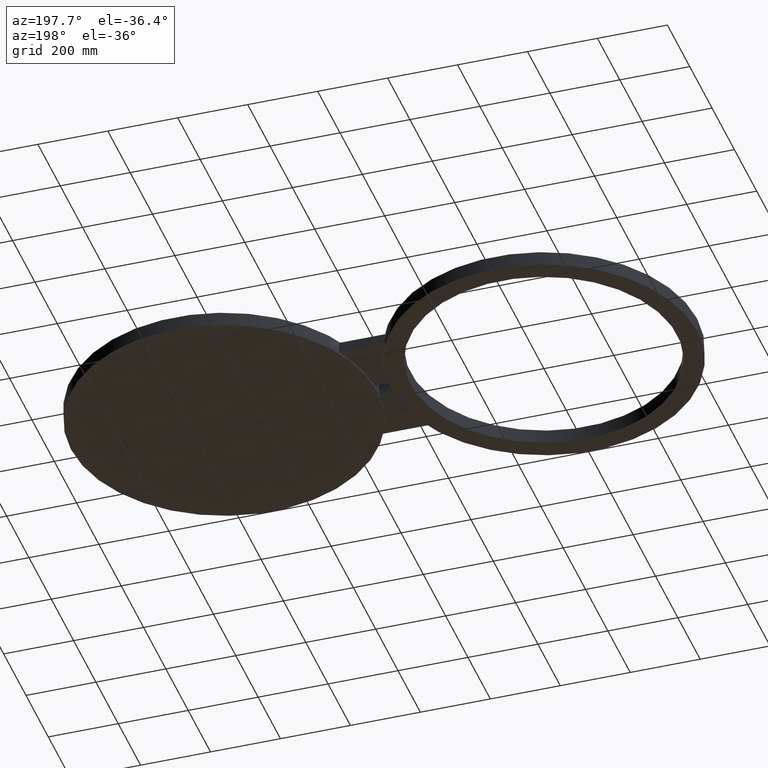
[diagram: clean part render]
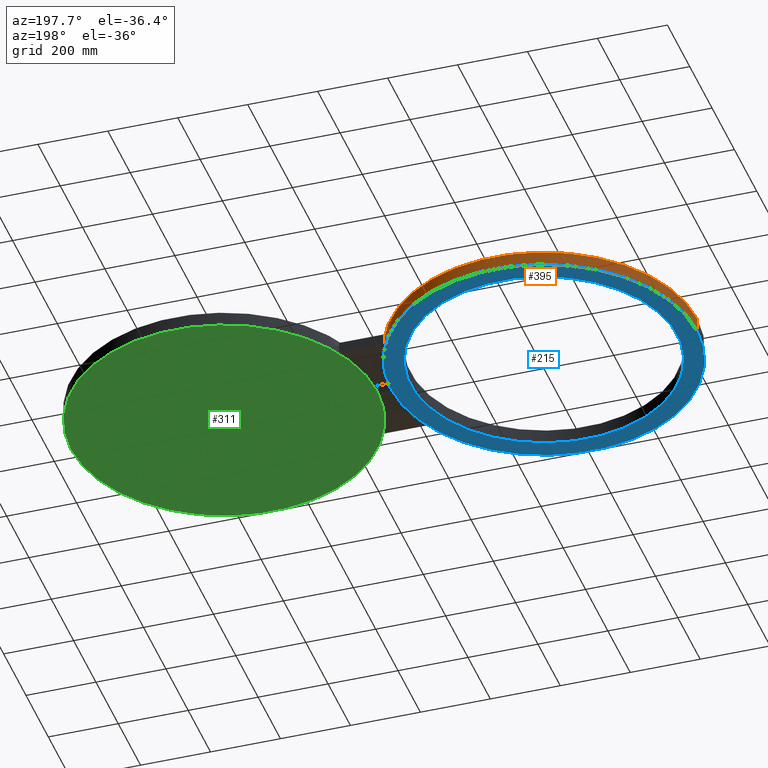
[diagram: same view with three faces highlighted in distinct colors, each labeled with its STEP entity id]
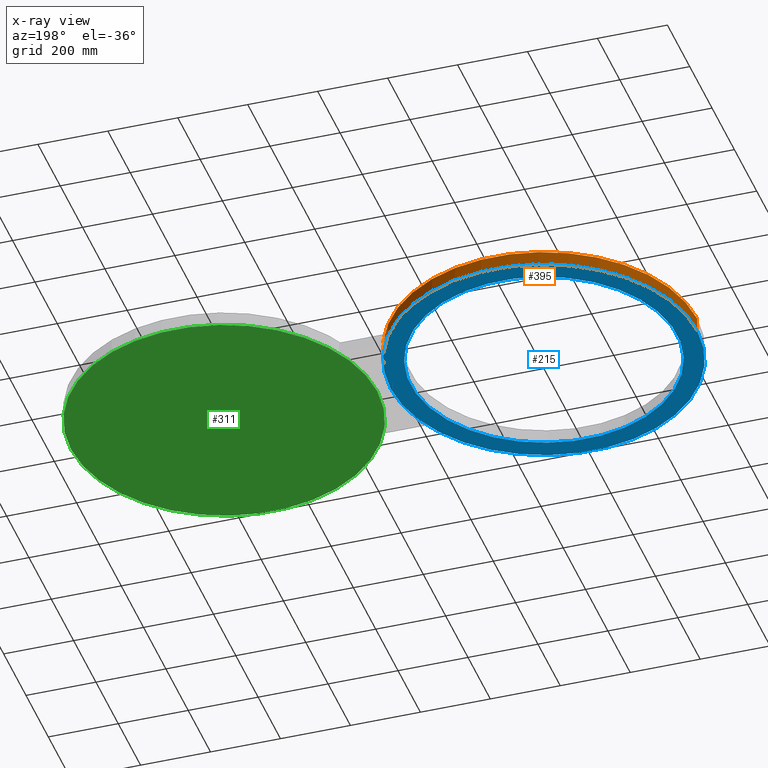
[diagram: x-ray of the same camera — body ghosted, the three highlighted faces saturated]
A machine part, auxiliary view with three faces highlighted in distinct colors.
The next image is the same camera in x-ray (body ghosted, the three faces saturated) — at least one of them is partly hidden behind the body in this view.
Their STEP definitions:

[orange] entity #395 — the highlighted cylindrical surface (partial cylindrical patch) has radius 438.15 mm, axis along (0, 0, 1).
#112=AXIS2_PLACEMENT_3D('Cylinder Axis2P3D',#109,#110,#111) ;
#190=AXIS2_PLACEMENT_3D('Circle Axis2P3D',#188,#189,$) ;
#272=AXIS2_PLACEMENT_3D('Circle Axis2P3D',#270,#271,$) ;
#344=AXIS2_PLACEMENT_3D('Circle Axis2P3D',#342,#343,$) ;
#380=AXIS2_PLACEMENT_3D('Circle Axis2P3D',#378,#379,$) ;
#109=CARTESIAN_POINT('Axis2P3D Location',(0.,0.,0.)) ;
#114=CARTESIAN_POINT('Line Origine',(-17.2500000001,2.11251572854E-015,0.)) ;
#118=CARTESIAN_POINT('Vertex',(-17.2500000001,2.11251572854E-015,-0.812500000003)) ;
#120=CARTESIAN_POINT('Vertex',(-17.2500000001,2.11251572854E-015,0.812500000003)) ;
#127=CARTESIAN_POINT('Vertex',(17.2500000001,0.,-0.812500000003)) ;
#130=CARTESIAN_POINT('Line Origine',(17.2500000001,-4.22503145708E-015,0.)) ;
#134=CARTESIAN_POINT('Vertex',(17.2500000001,0.,0.812500000003)) ;
#188=CARTESIAN_POINT('Axis2P3D Location',(0.,0.,-0.812500000003)) ;
#234=CARTESIAN_POINT('Vertex',(15.4110350075,7.75000000003,-0.609375000002)) ;
#237=CARTESIAN_POINT('Line Origine',(15.4110350075,7.75000000003,-6.99353086378E-017)) ;
#241=CARTESIAN_POINT('Vertex',(15.4110350075,7.75000000003,0.609375000002)) ;
#265=CARTESIAN_POINT('Vertex',(17.2336879397,0.750000000003,-0.609375000002)) ;
#270=CARTESIAN_POINT('Axis2P3D Location',(-6.04241066631E-014,-1.73439565422E-014,-0.609375000002)) ;
#342=CARTESIAN_POINT('Axis2P3D Location',(-6.04241066631E-014,-1.73439565422E-014,0.609375000002)) ;
#346=CARTESIAN_POINT('Vertex',(17.2336879397,0.750000000003,0.609375000002)) ;
#366=CARTESIAN_POINT('Line Origine',(17.2336879397,0.750000000003,-6.99353086378E-017)) ;
#378=CARTESIAN_POINT('Axis2P3D Location',(0.,0.,0.812500000003)) ;
#110=DIRECTION('Axis2P3D Direction',(0.,0.,0.0393700787402)) ;
#111=DIRECTION('Axis2P3D XDirection',(0.0393700787402,0.,0.)) ;
#115=DIRECTION('Vector Direction',(0.,0.,0.0393700787402)) ;
#131=DIRECTION('Vector Direction',(0.,0.,0.0393700787402)) ;
#189=DIRECTION('Axis2P3D Direction',(0.,0.,0.0393700787402)) ;
#238=DIRECTION('Vector Direction',(0.,0.,0.0393700787402)) ;
#271=DIRECTION('Axis2P3D Direction',(0.,0.,0.0393700787402)) ;
#343=DIRECTION('Axis2P3D Direction',(0.,0.,0.0393700787402)) ;
#367=DIRECTION('Vector Direction',(0.,0.,0.0393700787402)) ;
#379=DIRECTION('Axis2P3D Direction',(0.,0.,0.0393700787402)) ;
#116=VECTOR('Line Direction',#115,0.0393700787402) ;
#132=VECTOR('Line Direction',#131,0.0393700787402) ;
#239=VECTOR('Line Direction',#238,0.0393700787402) ;
#368=VECTOR('Line Direction',#367,0.0393700787402) ;
#384=ORIENTED_EDGE('',*,*,#136,.F.) ;
#385=ORIENTED_EDGE('',*,*,#192,.T.) ;
#386=ORIENTED_EDGE('',*,*,#122,.T.) ;
#387=ORIENTED_EDGE('',*,*,#382,.F.) ;
#390=ORIENTED_EDGE('',*,*,#243,.F.) ;
#391=ORIENTED_EDGE('',*,*,#274,.F.) ;
#392=ORIENTED_EDGE('',*,*,#370,.T.) ;
#393=ORIENTED_EDGE('',*,*,#348,.T.) ;
#394=FACE_BOUND('',#389,.T.) ;
#395=ADVANCED_FACE('PartBody',(#388,#394),#113,.T.) ;
#191=CIRCLE('generated circle',#190,17.2500000001) ;
#273=CIRCLE('generated circle',#272,17.2500000001) ;
#345=CIRCLE('generated circle',#344,17.2500000001) ;
#381=CIRCLE('generated circle',#380,17.2500000001) ;
#113=CYLINDRICAL_SURFACE('generated cylinder',#112,17.2500000001) ;
#122=EDGE_CURVE('',#119,#121,#117,.T.) ;
#136=EDGE_CURVE('',#128,#135,#133,.T.) ;
#192=EDGE_CURVE('',#128,#119,#191,.T.) ;
#243=EDGE_CURVE('',#235,#242,#240,.T.) ;
#274=EDGE_CURVE('',#266,#235,#273,.T.) ;
#348=EDGE_CURVE('',#347,#242,#345,.T.) ;
#370=EDGE_CURVE('',#266,#347,#369,.T.) ;
#382=EDGE_CURVE('',#135,#121,#381,.T.) ;
#383=EDGE_LOOP('',(#384,#385,#386,#387)) ;
#389=EDGE_LOOP('',(#390,#391,#392,#393)) ;
#388=FACE_OUTER_BOUND('',#383,.T.) ;
#117=LINE('Line',#114,#116) ;
#133=LINE('Line',#130,#132) ;
#240=LINE('Line',#237,#239) ;
#369=LINE('Line',#366,#368) ;
#119=VERTEX_POINT('',#118) ;
#121=VERTEX_POINT('',#120) ;
#128=VERTEX_POINT('',#127) ;
#135=VERTEX_POINT('',#134) ;
#235=VERTEX_POINT('',#234) ;
#242=VERTEX_POINT('',#241) ;
#266=VERTEX_POINT('',#265) ;
#347=VERTEX_POINT('',#346) ;

[blue] entity #215 — the highlighted planar face has unit normal (0, 0, 1).
#125=AXIS2_PLACEMENT_3D('Circle Axis2P3D',#123,#124,$) ;
#186=AXIS2_PLACEMENT_3D('Plane Axis2P3D',#183,#184,#185) ;
#190=AXIS2_PLACEMENT_3D('Circle Axis2P3D',#188,#189,$) ;
#199=AXIS2_PLACEMENT_3D('Circle Axis2P3D',#197,#198,$) ;
#208=AXIS2_PLACEMENT_3D('Circle Axis2P3D',#206,#207,$) ;
#118=CARTESIAN_POINT('Vertex',(-17.2500000001,2.11251572854E-015,-0.812500000003)) ;
#123=CARTESIAN_POINT('Axis2P3D Location',(0.,0.,-0.812500000003)) ;
#127=CARTESIAN_POINT('Vertex',(17.2500000001,0.,-0.812500000003)) ;
#183=CARTESIAN_POINT('Axis2P3D Location',(0.,0.,-0.812500000003)) ;
#188=CARTESIAN_POINT('Axis2P3D Location',(0.,0.,-0.812500000003)) ;
#197=CARTESIAN_POINT('Axis2P3D Location',(2.23792987641E-015,-4.47585975282E-015,-0.812500000003)) ;
#201=CARTESIAN_POINT('Vertex',(13.1637384284,-7.19138307909,-0.812500000003)) ;
#203=CARTESIAN_POINT('Vertex',(-13.1637384284,7.19138307909,-0.812500000003)) ;
#206=CARTESIAN_POINT('Axis2P3D Location',(-5.59482469102E-016,2.23792987641E-015,-0.812500000003)) ;
#124=DIRECTION('Axis2P3D Direction',(0.,0.,0.0393700787402)) ;
#184=DIRECTION('Axis2P3D Direction',(0.,0.,0.0393700787402)) ;
#185=DIRECTION('Axis2P3D XDirection',(0.0393700787402,0.,0.)) ;
#189=DIRECTION('Axis2P3D Direction',(0.,0.,0.0393700787402)) ;
#198=DIRECTION('Axis2P3D Direction',(0.,0.,0.0393700787402)) ;
#207=DIRECTION('Axis2P3D Direction',(0.,0.,0.0393700787402)) ;
#194=ORIENTED_EDGE('',*,*,#129,.F.) ;
#195=ORIENTED_EDGE('',*,*,#192,.F.) ;
#212=ORIENTED_EDGE('',*,*,#205,.T.) ;
#213=ORIENTED_EDGE('',*,*,#210,.T.) ;
#214=FACE_BOUND('',#211,.T.) ;
#215=ADVANCED_FACE('PartBody',(#196,#214),#187,.F.) ;
#126=CIRCLE('generated circle',#125,17.2500000001) ;
#191=CIRCLE('generated circle',#190,17.2500000001) ;
#200=CIRCLE('generated circle',#199,15.0000000001) ;
#209=CIRCLE('generated circle',#208,15.0000000001) ;
#129=EDGE_CURVE('',#119,#128,#126,.T.) ;
#192=EDGE_CURVE('',#128,#119,#191,.T.) ;
#205=EDGE_CURVE('',#202,#204,#200,.T.) ;
#210=EDGE_CURVE('',#204,#202,#209,.T.) ;
#193=EDGE_LOOP('',(#194,#195)) ;
#211=EDGE_LOOP('',(#212,#213)) ;
#196=FACE_OUTER_BOUND('',#193,.T.) ;
#187=PLANE('',#186) ;
#119=VERTEX_POINT('',#118) ;
#128=VERTEX_POINT('',#127) ;
#202=VERTEX_POINT('',#201) ;
#204=VERTEX_POINT('',#203) ;

[green] entity #311 — the highlighted planar face has unit normal (0, 0, 1).
#51=AXIS2_PLACEMENT_3D('Circle Axis2P3D',#49,#50,$) ;
#186=AXIS2_PLACEMENT_3D('Plane Axis2P3D',#183,#184,#185) ;
#304=AXIS2_PLACEMENT_3D('Circle Axis2P3D',#302,#303,$) ;
#44=CARTESIAN_POINT('Vertex',(18.7500000001,6.52124420549E-015,-0.812500000003)) ;
#49=CARTESIAN_POINT('Axis2P3D Location',(36.0000000001,4.40872847695E-015,-0.812500000003)) ;
#53=CARTESIAN_POINT('Vertex',(53.2500000002,1.83697019873E-016,-0.812500000003)) ;
#183=CARTESIAN_POINT('Axis2P3D Location',(0.,0.,-0.812500000003)) ;
#302=CARTESIAN_POINT('Axis2P3D Location',(36.0000000001,4.40872847695E-015,-0.812500000003)) ;
#50=DIRECTION('Axis2P3D Direction',(0.,0.,0.0393700787402)) ;
#184=DIRECTION('Axis2P3D Direction',(0.,0.,0.0393700787402)) ;
#185=DIRECTION('Axis2P3D XDirection',(0.0393700787402,0.,0.)) ;
#303=DIRECTION('Axis2P3D Direction',(0.,0.,0.0393700787402)) ;
#308=ORIENTED_EDGE('',*,*,#306,.F.) ;
#309=ORIENTED_EDGE('',*,*,#55,.F.) ;
#311=ADVANCED_FACE('PartBody',(#310),#187,.F.) ;
#52=CIRCLE('generated circle',#51,17.2500000001) ;
#305=CIRCLE('generated circle',#304,17.2500000001) ;
#55=EDGE_CURVE('',#45,#54,#52,.T.) ;
#306=EDGE_CURVE('',#54,#45,#305,.T.) ;
#307=EDGE_LOOP('',(#308,#309)) ;
#310=FACE_OUTER_BOUND('',#307,.T.) ;
#187=PLANE('',#186) ;
#45=VERTEX_POINT('',#44) ;
#54=VERTEX_POINT('',#53) ;